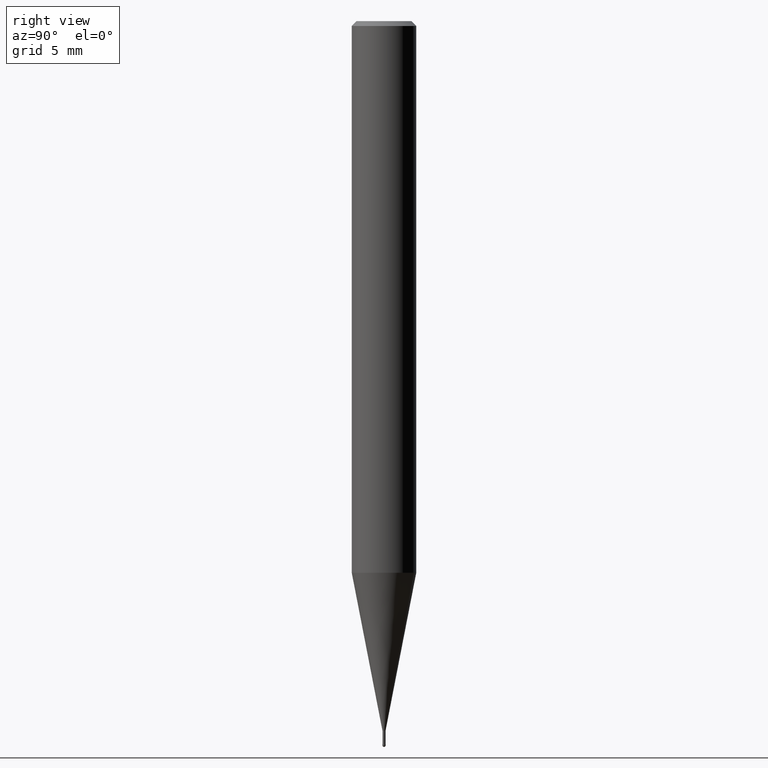
[diagram: clean part render]
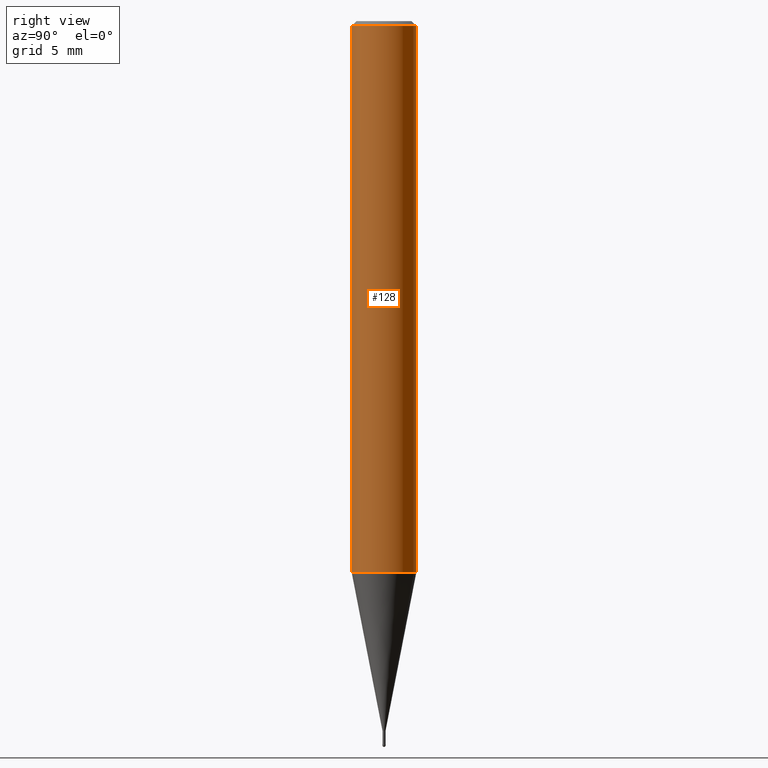
[diagram: same view with one face highlighted and labeled with its STEP entity id]
A machine part, right view. The second image highlights one B-rep face of the part: STEP entity #128.
In plain terms, the highlighted cylindrical surface (edge-blend (fillet) strip) has radius 2 mm, axis along (-0, -0, 1).
Its self-contained STEP definition (entity closure, byte-faithful):
#110=EDGE_CURVE('',#134,#164,#252,.T.);
#128=ADVANCED_FACE('',(#274),#275,.T.);
#130=EDGE_CURVE('',#172,#188,#277,.T.);
#134=VERTEX_POINT('',#281);
#146=EDGE_CURVE('',#172,#134,#294,.T.);
#164=VERTEX_POINT('',#314);
#172=VERTEX_POINT('',#322);
#188=VERTEX_POINT('',#341);
#192=EDGE_CURVE('',#164,#188,#345,.T.);
#252=CIRCLE('',#409,2.0);
#274=FACE_OUTER_BOUND('',#432,.T.);
#275=CYLINDRICAL_SURFACE('',#433,2.0);
#277=CIRCLE('',#436,2.0);
#281=CARTESIAN_POINT('',(0.0,2.0,-34.2));
#294=LINE('',#456,#457);
#314=CARTESIAN_POINT('',(2.44921270764475E-016,-2.0,-34.2));
#322=CARTESIAN_POINT('',(0.0,2.0,-0.299999999999997));
#341=CARTESIAN_POINT('',(2.44921270764475E-016,-2.0,-0.299999999999997));
#345=LINE('',#523,#524);
#409=AXIS2_PLACEMENT_3D('',#577,#578,#579);
#432=EDGE_LOOP('',(#620,#621,#622,#623));
#433=AXIS2_PLACEMENT_3D('',#624,#625,#626);
#436=AXIS2_PLACEMENT_3D('',#627,#628,#629);
#456=CARTESIAN_POINT('',(-2.44921270764475E-016,2.0,-17.25));
#457=VECTOR('',#642,1.0);
#523=CARTESIAN_POINT('',(2.44921270764475E-016,-2.0,-17.25));
#524=VECTOR('',#695,1.0);
#577=CARTESIAN_POINT('',(0.0,0.0,-34.2));
#578=DIRECTION('',(0.0,0.0,-1.0));
#579=DIRECTION('',(0.0,1.0,0.0));
#620=ORIENTED_EDGE('',*,*,#146,.F.);
#621=ORIENTED_EDGE('',*,*,#130,.T.);
#622=ORIENTED_EDGE('',*,*,#192,.F.);
#623=ORIENTED_EDGE('',*,*,#110,.F.);
#624=CARTESIAN_POINT('',(0.0,0.0,-17.25));
#625=DIRECTION('',(-0.0,-0.0,1.0));
#626=DIRECTION('',(0.0,1.0,0.0));
#627=CARTESIAN_POINT('',(0.0,0.0,-0.299999999999997));
#628=DIRECTION('',(0.0,0.0,-1.0));
#629=DIRECTION('',(0.0,1.0,0.0));
#642=DIRECTION('',(0.0,0.0,-1.0));
#695=DIRECTION('',(-0.0,-0.0,1.0));